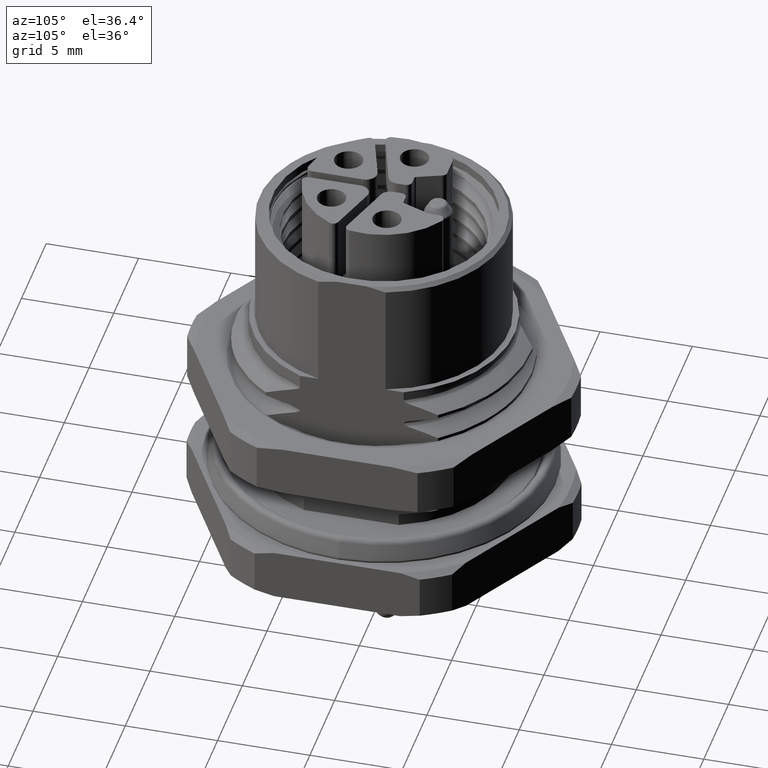
[diagram: clean part render]
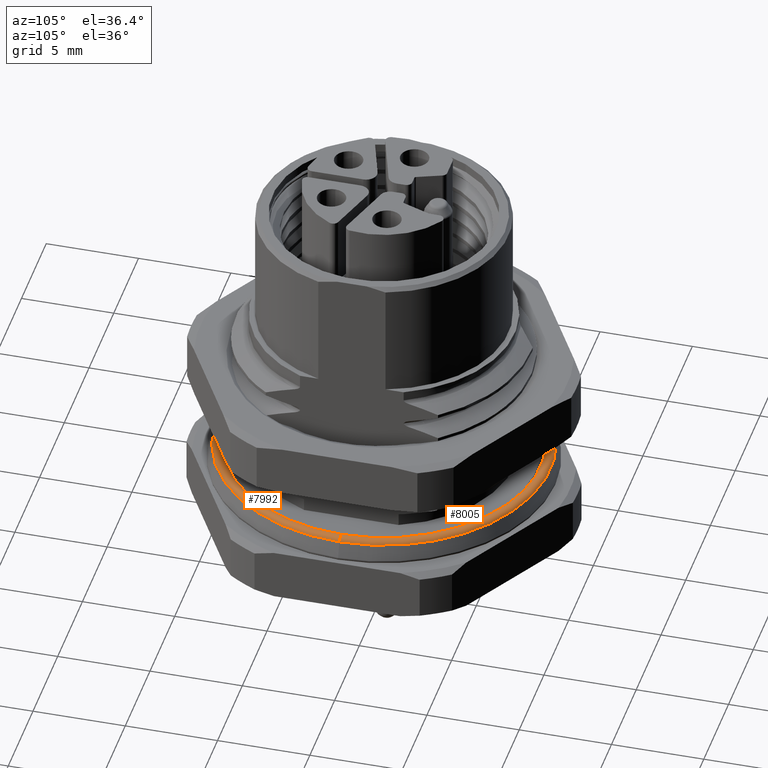
[diagram: same view with one multi-face feature highlighted, each face labeled with its STEP entity id]
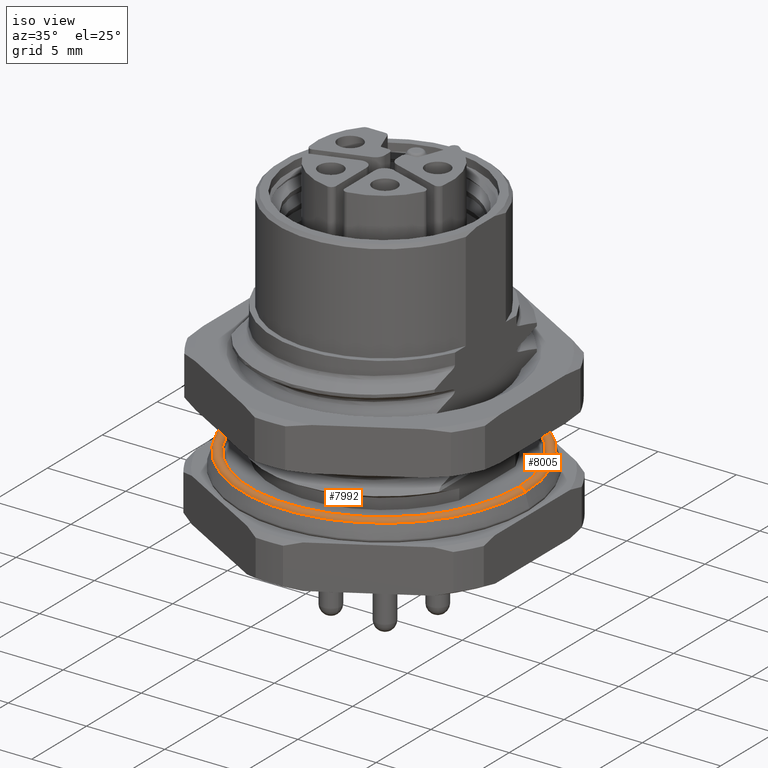
[diagram: same view with one multi-face feature highlighted, each face labeled with its STEP entity id]
A machine part, auxiliary view. The highlighted faces form ONE feature: a constant-radius fillet chain: 2 tangent blend faces with common blend radius 0.2981 mm. The faces share edges in the B-rep.
A second angle (iso view) of the same feature is appended — it is thin or edge-on in the first view.
Their STEP definitions:
[1] entity #8005 (Torus):
#491=CARTESIAN_POINT('',(0.E0,0.E0,1.039086972810E0));
#492=DIRECTION('',(0.E0,0.E0,1.E0));
#493=DIRECTION('',(1.E0,0.E0,0.E0));
#494=AXIS2_PLACEMENT_3D('',#491,#492,#493);
#510=CARTESIAN_POINT('',(8.735E0,0.E0,9.519437625688E-1));
#511=DIRECTION('',(0.E0,1.E0,0.E0));
#512=DIRECTION('',(-9.563047559630E-1,0.E0,2.923717047227E-1));
#513=AXIS2_PLACEMENT_3D('',#510,#511,#512);
#515=CARTESIAN_POINT('',(0.E0,0.E0,1.039086972810E0));
#516=DIRECTION('',(0.E0,0.E0,1.E0));
#517=DIRECTION('',(1.E0,0.E0,0.E0));
#518=AXIS2_PLACEMENT_3D('',#515,#516,#517);
#520=CARTESIAN_POINT('',(-8.735E0,0.E0,9.519437625688E-1));
#521=DIRECTION('',(0.E0,-1.E0,0.E0));
#522=DIRECTION('',(9.563047559630E-1,0.E0,2.923717047227E-1));
#523=AXIS2_PLACEMENT_3D('',#520,#521,#522);
#7432=CARTESIAN_POINT('',(8.449967402600E0,0.E0,1.039086972810E0));
#7433=CARTESIAN_POINT('',(9.020032597400E0,0.E0,1.039086972810E0));
#7434=VERTEX_POINT('',#7432);
#7435=VERTEX_POINT('',#7433);
#7438=CARTESIAN_POINT('',(-8.449967402600E0,0.E0,1.039086972810E0));
#7439=CARTESIAN_POINT('',(-9.020032597400E0,0.E0,1.039086972810E0));
#7440=VERTEX_POINT('',#7438);
#7441=VERTEX_POINT('',#7439);
#7993=CARTESIAN_POINT('',(0.E0,0.E0,9.519437625688E-1));
#7994=DIRECTION('',(0.E0,0.E0,-1.E0));
#7995=DIRECTION('',(1.E0,0.E0,0.E0));
#7996=AXIS2_PLACEMENT_3D('',#7993,#7994,#7995);
#7997=TOROIDAL_SURFACE('',#7996,8.735E0,2.980562374312E-1);
#7998=ORIENTED_EDGE('',*,*,#7983,.F.);
#8000=ORIENTED_EDGE('',*,*,#7999,.T.);
#8001=ORIENTED_EDGE('',*,*,#7986,.T.);
#8002=ORIENTED_EDGE('',*,*,#7957,.F.);
#8003=EDGE_LOOP('',(#7998,#8000,#8001,#8002));
#8004=FACE_OUTER_BOUND('',#8003,.F.);
#495=CIRCLE('',#494,9.020032597400E0);
#514=CIRCLE('',#513,2.980562374312E-1);
#519=CIRCLE('',#518,8.449967402600E0);
#524=CIRCLE('',#523,2.980562374312E-1);
#7957=EDGE_CURVE('',#7435,#7441,#495,.T.);
#7983=EDGE_CURVE('',#7434,#7435,#514,.T.);
#7986=EDGE_CURVE('',#7440,#7441,#524,.T.);
#7999=EDGE_CURVE('',#7434,#7440,#519,.T.);
#8005=ADVANCED_FACE('',(#8004),#7997,.T.);
[2] entity #7992 (Torus):
#500=CARTESIAN_POINT('',(0.E0,0.E0,1.039086972810E0));
#501=DIRECTION('',(0.E0,0.E0,-1.E0));
#502=DIRECTION('',(1.E0,0.E0,0.E0));
#503=AXIS2_PLACEMENT_3D('',#500,#501,#502);
#505=CARTESIAN_POINT('',(0.E0,0.E0,1.039086972810E0));
#506=DIRECTION('',(0.E0,0.E0,-1.E0));
#507=DIRECTION('',(1.E0,0.E0,0.E0));
#508=AXIS2_PLACEMENT_3D('',#505,#506,#507);
#510=CARTESIAN_POINT('',(8.735E0,0.E0,9.519437625688E-1));
#511=DIRECTION('',(0.E0,1.E0,0.E0));
#512=DIRECTION('',(-9.563047559630E-1,0.E0,2.923717047227E-1));
#513=AXIS2_PLACEMENT_3D('',#510,#511,#512);
#520=CARTESIAN_POINT('',(-8.735E0,0.E0,9.519437625688E-1));
#521=DIRECTION('',(0.E0,-1.E0,0.E0));
#522=DIRECTION('',(9.563047559630E-1,0.E0,2.923717047227E-1));
#523=AXIS2_PLACEMENT_3D('',#520,#521,#522);
#7432=CARTESIAN_POINT('',(8.449967402600E0,0.E0,1.039086972810E0));
#7433=CARTESIAN_POINT('',(9.020032597400E0,0.E0,1.039086972810E0));
#7434=VERTEX_POINT('',#7432);
#7435=VERTEX_POINT('',#7433);
#7438=CARTESIAN_POINT('',(-8.449967402600E0,0.E0,1.039086972810E0));
#7439=CARTESIAN_POINT('',(-9.020032597400E0,0.E0,1.039086972810E0));
#7440=VERTEX_POINT('',#7438);
#7441=VERTEX_POINT('',#7439);
#7978=CARTESIAN_POINT('',(0.E0,0.E0,9.519437625688E-1));
#7979=DIRECTION('',(0.E0,0.E0,-1.E0));
#7980=DIRECTION('',(1.E0,0.E0,0.E0));
#7981=AXIS2_PLACEMENT_3D('',#7978,#7979,#7980);
#7982=TOROIDAL_SURFACE('',#7981,8.735E0,2.980562374312E-1);
#7984=ORIENTED_EDGE('',*,*,#7983,.T.);
#7985=ORIENTED_EDGE('',*,*,#7973,.T.);
#7987=ORIENTED_EDGE('',*,*,#7986,.F.);
#7989=ORIENTED_EDGE('',*,*,#7988,.F.);
#7990=EDGE_LOOP('',(#7984,#7985,#7987,#7989));
#7991=FACE_OUTER_BOUND('',#7990,.F.);
#504=CIRCLE('',#503,9.020032597400E0);
#509=CIRCLE('',#508,8.449967402600E0);
#514=CIRCLE('',#513,2.980562374312E-1);
#524=CIRCLE('',#523,2.980562374312E-1);
#7973=EDGE_CURVE('',#7435,#7441,#504,.T.);
#7983=EDGE_CURVE('',#7434,#7435,#514,.T.);
#7986=EDGE_CURVE('',#7440,#7441,#524,.T.);
#7988=EDGE_CURVE('',#7434,#7440,#509,.T.);
#7992=ADVANCED_FACE('',(#7991),#7982,.T.);